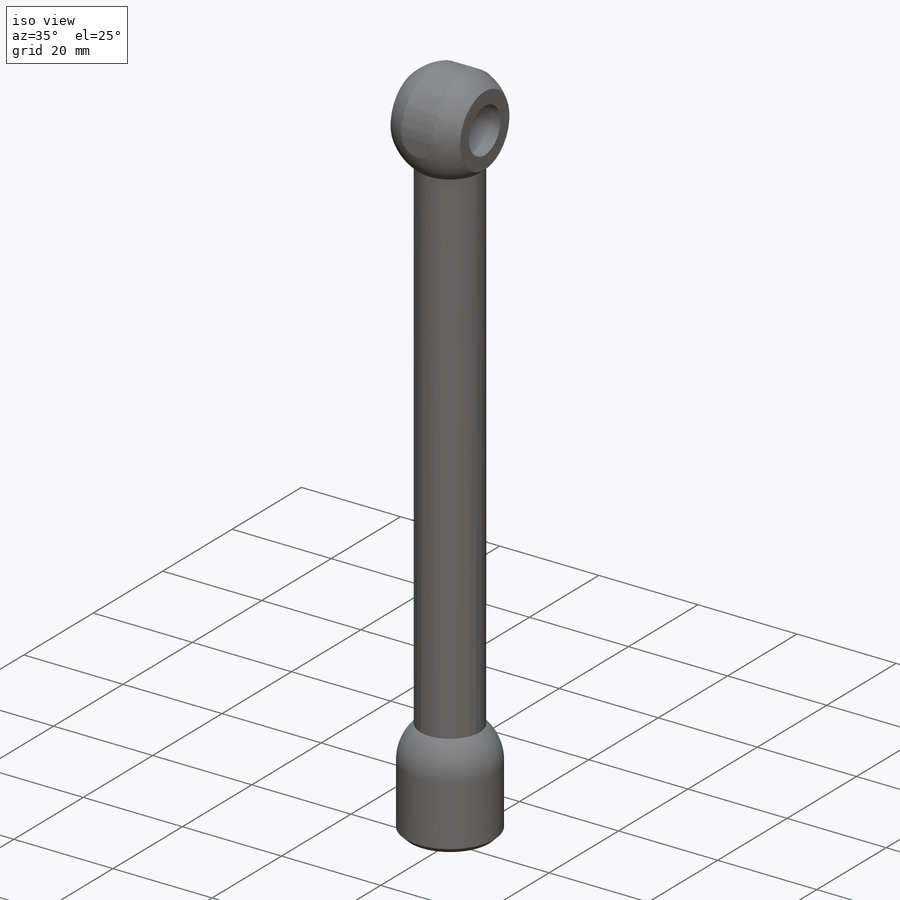
[diagram: iso view]
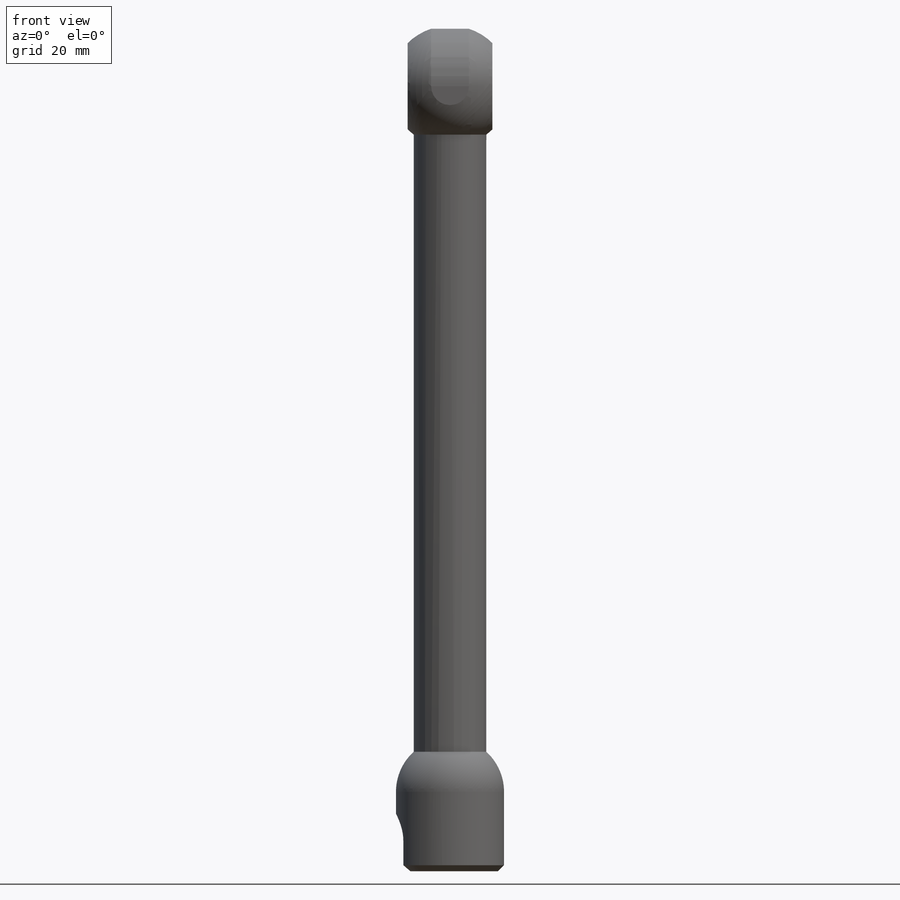
[diagram: front view]
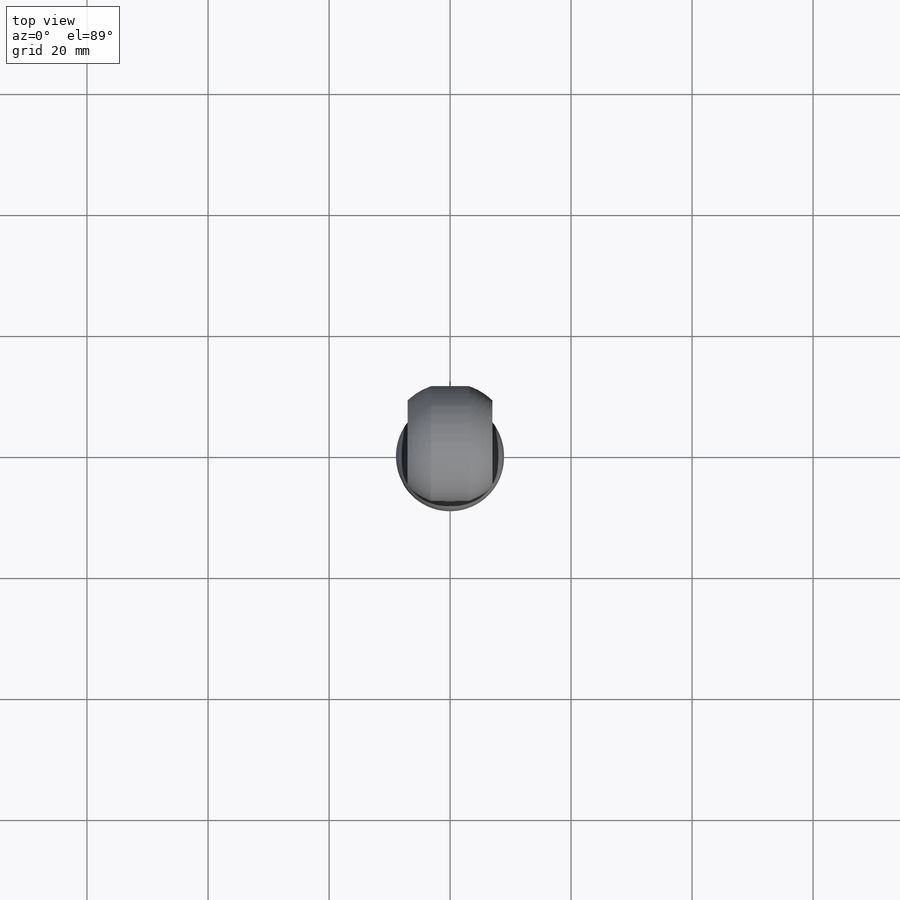
[diagram: top view]
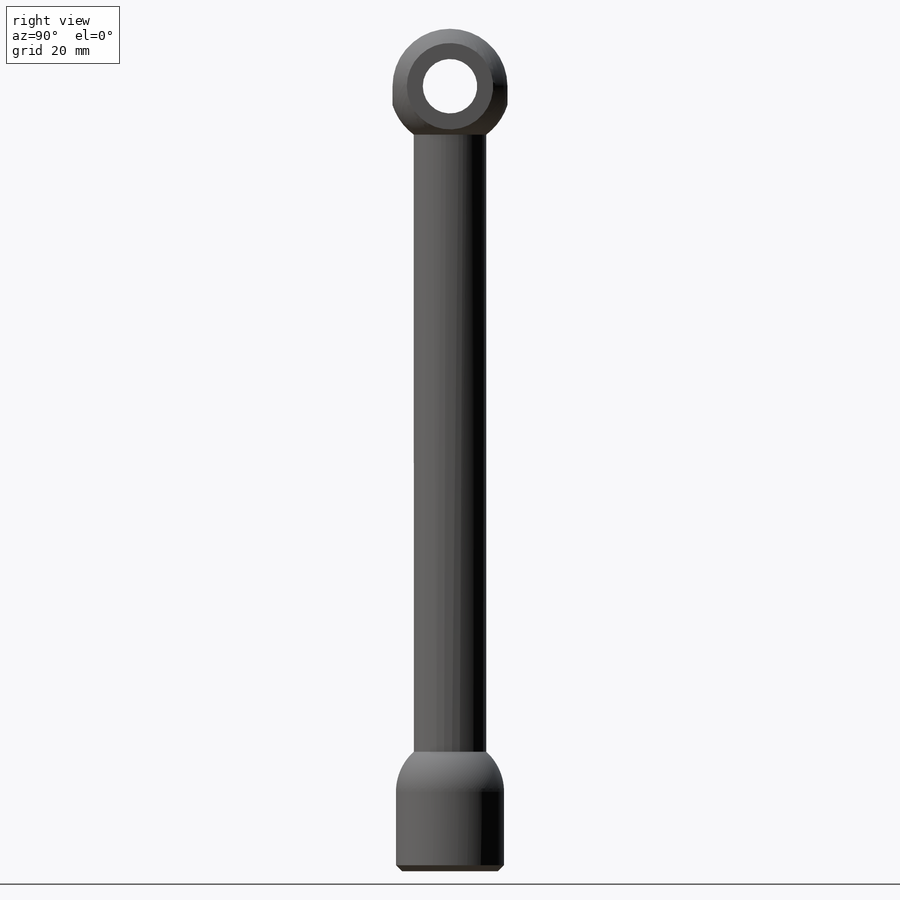
[diagram: right view]
SOLIDWORKS PART (.sldprt)
format: sldprt  version: not decoded by parser v0  size: 386,560 bytes
history: native  units: mm
features: sketch x8, plane x5, cut_extrude x4, revolve x2, material x1, extrude x1, cut_revolve x1, chamfer x1 (+8 scaffold rows collapsed)
feature tree (31):
  scaffold x8  (default folders/planes/origin — collapsed)
  material  "Материал <не указан>"
  plane  "Спереди"
  plane  "Сверху"
  plane  "Справа"
  sketch  "Эскиз1"  dims[D1=20.0mm]
  revolve  "Повернуть1"  Angle=360deg
  plane  "Плоскость2"
  sketch  "Эскиз3"  dims[D1=7.0mm D2=7.0mm]
  cut_extrude  "Вырез-Вытянуть1"  [1 undecoded]
  sketch  "Эскиз4"  dims[D1=19.0mm]
  cut_extrude  "Вырез-Вытянуть2"  [1 undecoded]
  plane  "Плоскость3"
  sketch  "Эскиз5"  dims[D1=12.0mm]
  extrude  "Бобышка-Вытянуть4"  Depth=100mm
  sketch  "Эскиз6"
  revolve  "Повернуть2"  Angle=360deg
  sketch  "Эскиз7"  dims[D1=14.0mm]
  cut_revolve  "Вырез-Повернуть1"  Angle=360deg
  sketch  "Эскиз8"  dims[D1=4.5mm]
  cut_extrude  "Вырез-Вытянуть3"  [1 undecoded]
  chamfer  "Фаска2"  Distance=1mm Angle=45deg
  sketch  "Эскиз9"  dims[D1=9.0mm]
  cut_extrude  "Вырез-Вытянуть4"  [1 undecoded]
decode coverage: 12 of 17 modeling features carry decoded parameters
note: 4 parameter values undecoded
summary: no parameter record found for 4 features
note: suppression state not decoded; provenance and decode notes live in map.json
